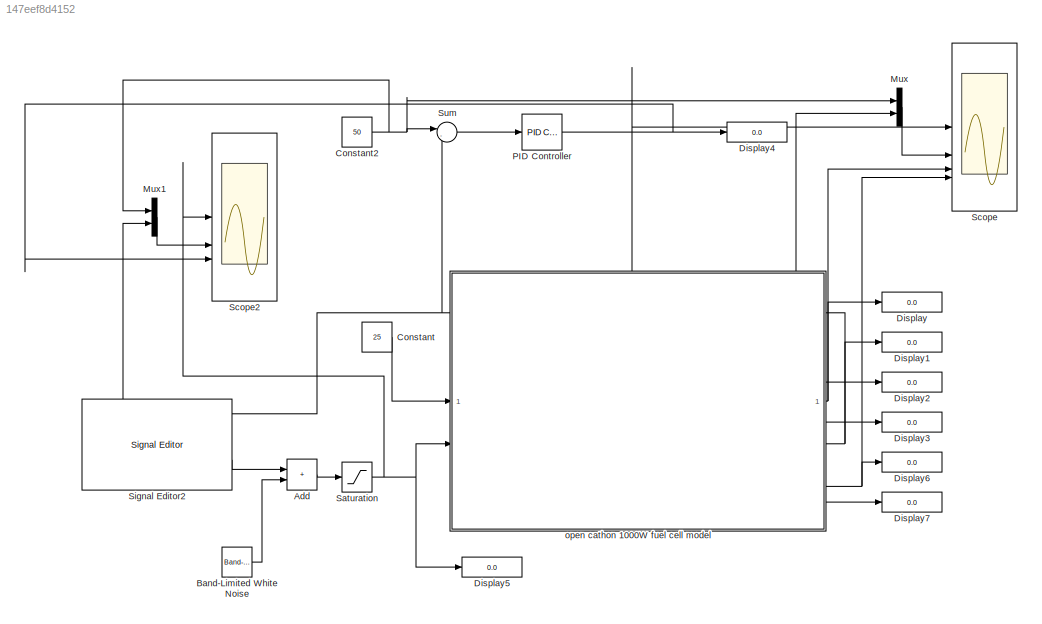
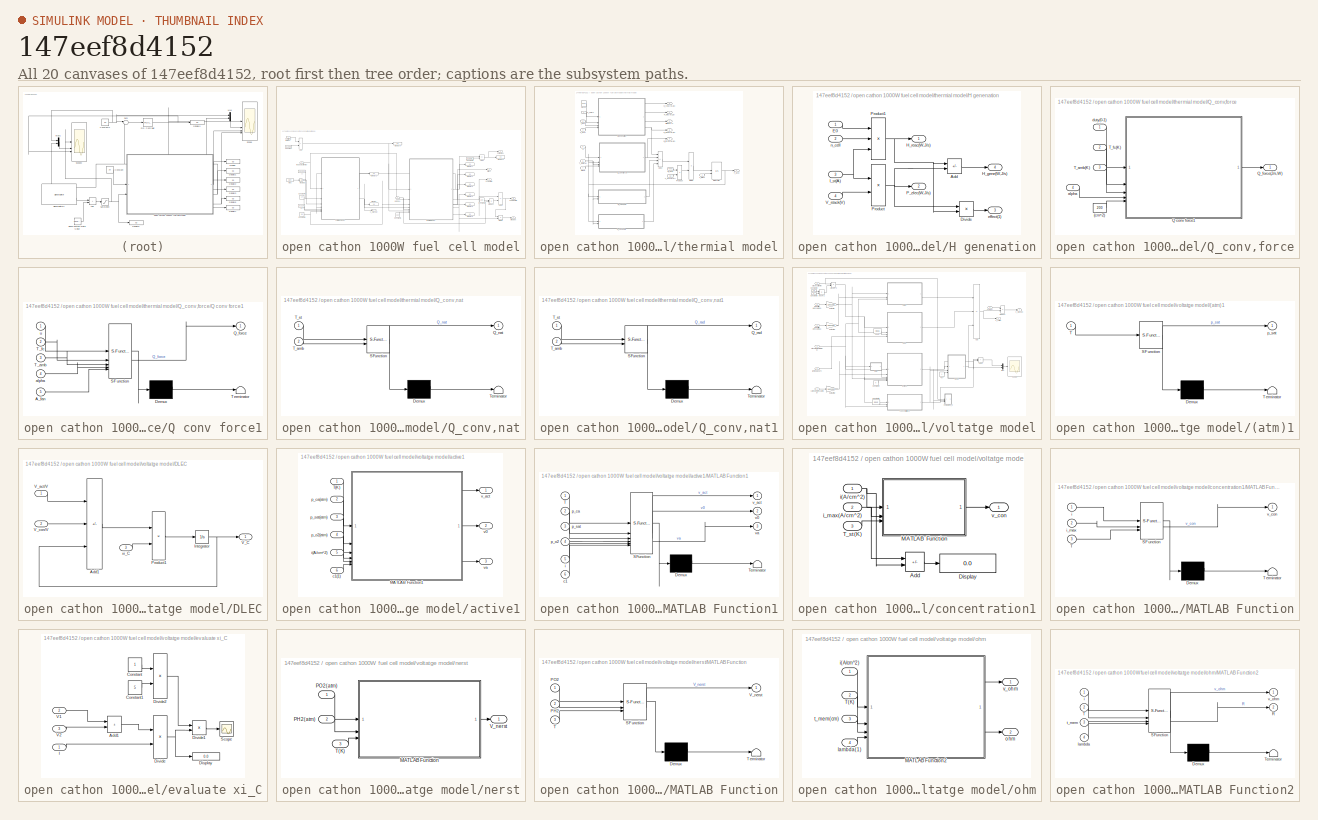
[diagram: thumbnail index - all 20 canvases of the model, root first then tree order]
MODEL slx_147eef8d4152
KIND model
CONFIG AbsTol = auto
CONFIG EnableMultiTasking = off
CONFIG FixedStep = auto
CONFIG MaxStep = auto
CONFIG MinStep = auto
CONFIG RelTol = 1e-3
CONFIG SampleTimeConstraint = Unconstrained
CONFIG SolverName = VariableStepAuto
CONFIG StartTime = 0.0
CONFIG StopTime = 200
BLOCK [Sum] Add
  IconShape = rectangular
BLOCK [Reference] Band-Limited White Noise  REF=simulink/Sources/Band-Limited
White Noise
  SourceBlock = simulink/Sources/Band-Limited\nWhite Noise
  SourceType = Band-Limited White Noise.
BLOCK [Constant] Constant
  Value = 25
BLOCK [Constant] Constant2
  Value = 50
BLOCK [Display] Display
  Decimation = 1
BLOCK [Display] Display1
  Decimation = 1
BLOCK [Display] Display2
  Decimation = 1
BLOCK [Display] Display3
  Decimation = 1
BLOCK [Display] Display4
  Decimation = 1
BLOCK [Display] Display5
  Decimation = 1
BLOCK [Display] Display6
  Decimation = 1
BLOCK [Display] Display7
  Decimation = 1
BLOCK [Mux] Mux
  DisplayOption = bar
  Inputs = 2
BLOCK [Mux] Mux1
  DisplayOption = bar
  Inputs = 2
BLOCK [Reference] PID Controller  REF=slpidlib/PID Controller
  LibrarySourceBlock = simulink/Continuous/PID Controller
  SourceBlock = slpidlib/PID Controller
  SourceType = PID 1dof
BLOCK [Saturate] Saturation
  LowerLimit = 0
  UpperLimit = 30
BLOCK [Scope] Scope
  Floating = off
  NumInputPorts = 4
  ScopeSpecificationString = Simulink.scopes.TimeScopeBlockCfg('CurrentConfiguration', extmgr.ConfigurationSet(extmgr.Configuration('Core','General UI',true),extmgr.Configuration('Core','Source UI',true),extmgr.Configuration('Sources','WiredSimulink',true),extmgr.Configuration('Visuals','Time Domain',true,'SerializedDisplays',{struct('MinYLimReal','-0.10748','MaxYLimReal','0.96734','YLabelReal','','MinYLimMag','0.00000','MaxY...<+3549ch>
BLOCK [Scope] Scope2
  Floating = off
  NumInputPorts = 3
  ScopeSpecificationString = Simulink.scopes.TimeScopeBlockCfg('CurrentConfiguration', extmgr.ConfigurationSet(extmgr.Configuration('Core','General UI',true,'FigureColor',[1 1 1]),extmgr.Configuration('Core','Source UI',true),extmgr.Configuration('Sources','WiredSimulink',true,'DataLoggingVariableName','ScopeData2'),extmgr.Configuration('Visuals','Time Domain',true,'SerializedDisplays',{struct('MinYLimReal','-3.75','MaxYLimRe...<+3335ch>
BLOCK [Reference] Signal Editor2  REF=SignalEditorBlockLib/Signal Editor
  LibrarySourceBlock = simulink/Sources/Signal Editor
  SourceBlock = SignalEditorBlockLib/Signal Editor
  SourceType = SignalEditor
  UserDataPersistent = on
BLOCK [Sum] Sum
  Inputs = |-+
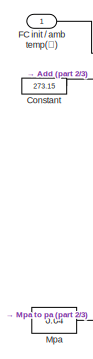
[diagram: open cathon 1000W fuel cell model - part 1/3, top left region]
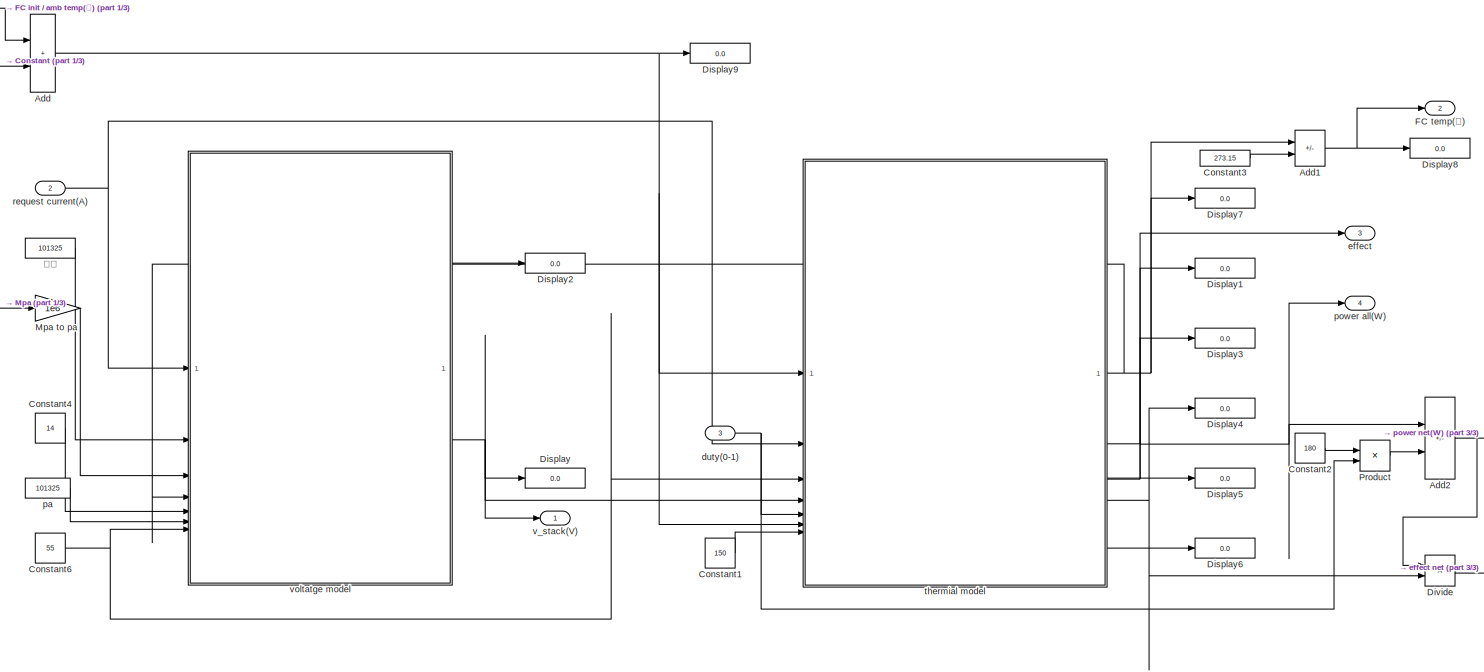
[diagram: open cathon 1000W fuel cell model - part 2/3, most of the canvas]
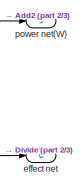
[diagram: open cathon 1000W fuel cell model - part 3/3, bottom right region]
BLOCK [SubSystem] open cathon 1000W fuel cell model
  PortSchema = {"entries":[{"content":{"sides":[{"content":{"connectorIds":["In1","In2"]},"type":"ConnectorPlacement.EquallySpacedRectSide","uuid":"ba3cf3bf-5a88-4595-bc65-1473d8f13f85"},{"content":{"connectorIds":["Out1","Out2","Out3","Out4","Out5","Out6"],"side":"RIGHT"},"type":"ConnectorPlacement.EquallySpacedRectSide","uuid":"62fe74ea-737d-441a-9df1-d302b55047a0"},{"content":{"connectorIds":["In3"],"side":"T...<+286ch>
BLOCK [Sum] open cathon 1000W fuel cell model/Add
  IconShape = rectangular
BLOCK [Sum] open cathon 1000W fuel cell model/Add1
  IconShape = rectangular
  Inputs = +-
BLOCK [Sum] open cathon 1000W fuel cell model/Add2
  IconShape = rectangular
  Inputs = +-
BLOCK [Constant] open cathon 1000W fuel cell model/Constant
  Value = 273.15
BLOCK [Constant] open cathon 1000W fuel cell model/Constant1
  Value = 150
BLOCK [Constant] open cathon 1000W fuel cell model/Constant2
  Value = 180
BLOCK [Constant] open cathon 1000W fuel cell model/Constant3
  Value = 273.15
BLOCK [Constant] open cathon 1000W fuel cell model/Constant4
  Value = 14
BLOCK [Constant] open cathon 1000W fuel cell model/Constant6
  Value = 55
BLOCK [Display] open cathon 1000W fuel cell model/Display
  Decimation = 1
BLOCK [Display] open cathon 1000W fuel cell model/Display1
  Decimation = 1
BLOCK [Display] open cathon 1000W fuel cell model/Display2
  Decimation = 1
BLOCK [Display] open cathon 1000W fuel cell model/Display3
  Decimation = 1
BLOCK [Display] open cathon 1000W fuel cell model/Display4
  Decimation = 1
BLOCK [Display] open cathon 1000W fuel cell model/Display5
  Decimation = 1
BLOCK [Display] open cathon 1000W fuel cell model/Display6
  Decimation = 1
BLOCK [Display] open cathon 1000W fuel cell model/Display7
  Decimation = 1
BLOCK [Display] open cathon 1000W fuel cell model/Display8
  Decimation = 1
BLOCK [Display] open cathon 1000W fuel cell model/Display9
  Decimation = 1
BLOCK [Product] open cathon 1000W fuel cell model/Divide
  Inputs = */
BLOCK [Inport] open cathon 1000W fuel cell model/FC init // amb temp(℃)
BLOCK [Outport] open cathon 1000W fuel cell model/FC temp(℃)
  Port = 2
BLOCK [Constant] open cathon 1000W fuel cell model/Mpa
  Value = 0.04
BLOCK [Gain] open cathon 1000W fuel cell model/Mpa to pa
  Gain = 1e6
BLOCK [Product] open cathon 1000W fuel cell model/Product
BLOCK [Inport] open cathon 1000W fuel cell model/duty(0-1)
  Port = 3
BLOCK [Outport] open cathon 1000W fuel cell model/effect
  Port = 3
BLOCK [Outport] open cathon 1000W fuel cell model/effect net
  Port = 6
BLOCK [Constant] open cathon 1000W fuel cell model/pa
  Value = 101325
BLOCK [Outport] open cathon 1000W fuel cell model/power all(W)
  Port = 4
BLOCK [Outport] open cathon 1000W fuel cell model/power net(W)
  Port = 5
BLOCK [Inport] open cathon 1000W fuel cell model/request current(A)
  Port = 2
BLOCK [SubSystem] open cathon 1000W fuel cell model/thermial model
BLOCK [Sum] open cathon 1000W fuel cell model/thermial model/Add1
  IconShape = rectangular
  Inputs = +---
BLOCK [Product] open cathon 1000W fuel cell model/thermial model/Divide
  Inputs = */
BLOCK [SubSystem] open cathon 1000W fuel cell model/thermial model/H genenation
BLOCK [Sum] open cathon 1000W fuel cell model/thermial model/H genenation/Add
  IconShape = rectangular
  Inputs = +-
BLOCK [Product] open cathon 1000W fuel cell model/thermial model/H genenation/Divide
  Inputs = */
BLOCK [Inport] open cathon 1000W fuel cell model/thermial model/H genenation/E0
BLOCK [Outport] open cathon 1000W fuel cell model/thermial model/H genenation/H_gene(W,J//s)
  Port = 4
BLOCK [Outport] open cathon 1000W fuel cell model/thermial model/H genenation/H_reac(W,J//s)
BLOCK [Inport] open cathon 1000W fuel cell model/thermial model/H genenation/I_st(A)
  Port = 3
BLOCK [Outport] open cathon 1000W fuel cell model/thermial model/H genenation/P_elec(W,J//s)
  Port = 2
BLOCK [Product] open cathon 1000W fuel cell model/thermial model/H genenation/Product
BLOCK [Product] open cathon 1000W fuel cell model/thermial model/H genenation/Product1
  Inputs = 3
BLOCK [Inport] open cathon 1000W fuel cell model/thermial model/H genenation/V_stack(V)
  Port = 4
BLOCK [Outport] open cathon 1000W fuel cell model/thermial model/H genenation/effect(1)
  Port = 3
BLOCK [Inport] open cathon 1000W fuel cell model/thermial model/H genenation/n_cell
  Port = 2
BLOCK [Outport] open cathon 1000W fuel cell model/thermial model/H_gene(W,J//s)
  Port = 5
BLOCK [Outport] open cathon 1000W fuel cell model/thermial model/H_reac(W,J//s)
  Port = 4
BLOCK [Inport] open cathon 1000W fuel cell model/thermial model/I_st(A)
  Port = 2
BLOCK [Integrator] open cathon 1000W fuel cell model/thermial model/Integrator
  InitialConditionSource = external
  LimitOutput = on
  LowerSaturationLimit = 273.15
  UpperSaturationLimit = 373.15
BLOCK [Outport] open cathon 1000W fuel cell model/thermial model/P_elec(W,J//s)
  Port = 3
BLOCK [Product] open cathon 1000W fuel cell model/thermial model/Product
BLOCK [SubSystem] open cathon 1000W fuel cell model/thermial model/Q_conv,force
BLOCK [Constant] open cathon 1000W fuel cell model/thermial model/Q_conv,force/(cm^2)
  Value = 200
BLOCK [SubSystem] open cathon 1000W fuel cell model/thermial model/Q_conv,force/Q conv force1
  ErrorFcn = Stateflow.Translate.translate
  LibrarySourceBlock = simulink/User-Defined\nFunctions/MATLAB Function
  PermitHierarchicalResolution = ExplicitOnly
  SFBlockType = MATLAB Function
  TreatAsAtomicUnit = on
BLOCK [Demux] open cathon 1000W fuel cell model/thermial model/Q_conv,force/Q conv force1/ Demux 
  Outputs = 1
BLOCK [S-Function] open cathon 1000W fuel cell model/thermial model/Q_conv,force/Q conv force1/ SFunction 
  EnableBusSupport = on
  FunctionName = sf_sfun
  PortCounts = [5 2]
  SFcnIsStateOwnerBlock = off
  SFunctionDeploymentMode = off
  Tag = Stateflow S-Function 8
BLOCK [Terminator] open cathon 1000W fuel cell model/thermial model/Q_conv,force/Q conv force1/ Terminator 
BLOCK [Inport] open cathon 1000W fuel cell model/thermial model/Q_conv,force/Q conv force1/A_fan
  Port = 5
BLOCK [Outport] open cathon 1000W fuel cell model/thermial model/Q_conv,force/Q conv force1/Q_force
BLOCK [Inport] open cathon 1000W fuel cell model/thermial model/Q_conv,force/Q conv force1/T_amb
  Port = 3
BLOCK [Inport] open cathon 1000W fuel cell model/thermial model/Q_conv,force/Q conv force1/T_fc
  Port = 2
BLOCK [Inport] open cathon 1000W fuel cell model/thermial model/Q_conv,force/Q conv force1/alpha
  Port = 4
BLOCK [Inport] open cathon 1000W fuel cell model/thermial model/Q_conv,force/Q conv force1/u
BLOCK [Outport] open cathon 1000W fuel cell model/thermial model/Q_conv,force/Q_force(J//s,W)
BLOCK [Inport] open cathon 1000W fuel cell model/thermial model/Q_conv,force/T_amb(K)
  Port = 3
BLOCK [Inport] open cathon 1000W fuel cell model/thermial model/Q_conv,force/T_fc(K)
  Port = 2
BLOCK [Inport] open cathon 1000W fuel cell model/thermial model/Q_conv,force/alpha
  Port = 4
BLOCK [Inport] open cathon 1000W fuel cell model/thermial model/Q_conv,force/duty(0-1)
BLOCK [SubSystem] open cathon 1000W fuel cell model/thermial model/Q_conv,nat
  ErrorFcn = Stateflow.Translate.translate
  LibrarySourceBlock = simulink/User-Defined\nFunctions/MATLAB Function
  PermitHierarchicalResolution = ExplicitOnly
  SFBlockType = MATLAB Function
  TreatAsAtomicUnit = on
BLOCK [Demux] open cathon 1000W fuel cell model/thermial model/Q_conv,nat/ Demux 
  Outputs = 1
BLOCK [S-Function] open cathon 1000W fuel cell model/thermial model/Q_conv,nat/ SFunction 
  EnableBusSupport = on
  FunctionName = sf_sfun
  PortCounts = [2 2]
  SFcnIsStateOwnerBlock = off
  SFunctionDeploymentMode = off
  Tag = Stateflow S-Function 7
BLOCK [Terminator] open cathon 1000W fuel cell model/thermial model/Q_conv,nat/ Terminator 
BLOCK [Outport] open cathon 1000W fuel cell model/thermial model/Q_conv,nat/Q_nat
BLOCK [Inport] open cathon 1000W fuel cell model/thermial model/Q_conv,nat/T_amb
  Port = 2
BLOCK [Inport] open cathon 1000W fuel cell model/thermial model/Q_conv,nat/T_st
BLOCK [SubSystem] open cathon 1000W fuel cell model/thermial model/Q_conv,nat1
  ErrorFcn = Stateflow.Translate.translate
  LibrarySourceBlock = simulink/User-Defined\nFunctions/MATLAB Function
  PermitHierarchicalResolution = ExplicitOnly
  SFBlockType = MATLAB Function
  TreatAsAtomicUnit = on
BLOCK [Demux] open cathon 1000W fuel cell model/thermial model/Q_conv,nat1/ Demux 
  Outputs = 1
BLOCK [S-Function] open cathon 1000W fuel cell model/thermial model/Q_conv,nat1/ SFunction 
  EnableBusSupport = on
  FunctionName = sf_sfun
  PortCounts = [2 2]
  SFcnIsStateOwnerBlock = off
  SFunctionDeploymentMode = off
  Tag = Stateflow S-Function 6
BLOCK [Terminator] open cathon 1000W fuel cell model/thermial model/Q_conv,nat1/ Terminator 
BLOCK [Outport] open cathon 1000W fuel cell model/thermial model/Q_conv,nat1/Q_rad
BLOCK [Inport] open cathon 1000W fuel cell model/thermial model/Q_conv,nat1/T_amb
  Port = 2
BLOCK [Inport] open cathon 1000W fuel cell model/thermial model/Q_conv,nat1/T_st
BLOCK [Outport] open cathon 1000W fuel cell model/thermial model/Q_force(W,J//s)
  Port = 6
BLOCK [Inport] open cathon 1000W fuel cell model/thermial model/T_amb(K)
  Port = 6
BLOCK [Inport] open cathon 1000W fuel cell model/thermial model/T_init(K)
BLOCK [Outport] open cathon 1000W fuel cell model/thermial model/T_st(K)
BLOCK [Inport] open cathon 1000W fuel cell model/thermial model/V_st(V)
  Port = 4
BLOCK [Inport] open cathon 1000W fuel cell model/thermial model/alpha
  Port = 7
BLOCK [Constant] open cathon 1000W fuel cell model/thermial model/c_st(J//(g*K))
  Value = 0.2
BLOCK [Outport] open cathon 1000W fuel cell model/thermial model/effect(0-1)
  Port = 2
BLOCK [Constant] open cathon 1000W fuel cell model/thermial model/m_st(g)
  Value = 4000
BLOCK [Inport] open cathon 1000W fuel cell model/thermial model/n_cell(1)
  Port = 3
BLOCK [Constant] open cathon 1000W fuel cell model/thermial model/nerst
  Value = 1.229
BLOCK [Inport] open cathon 1000W fuel cell model/thermial model/u
  Port = 5
BLOCK [Outport] open cathon 1000W fuel cell model/v_stack(V)
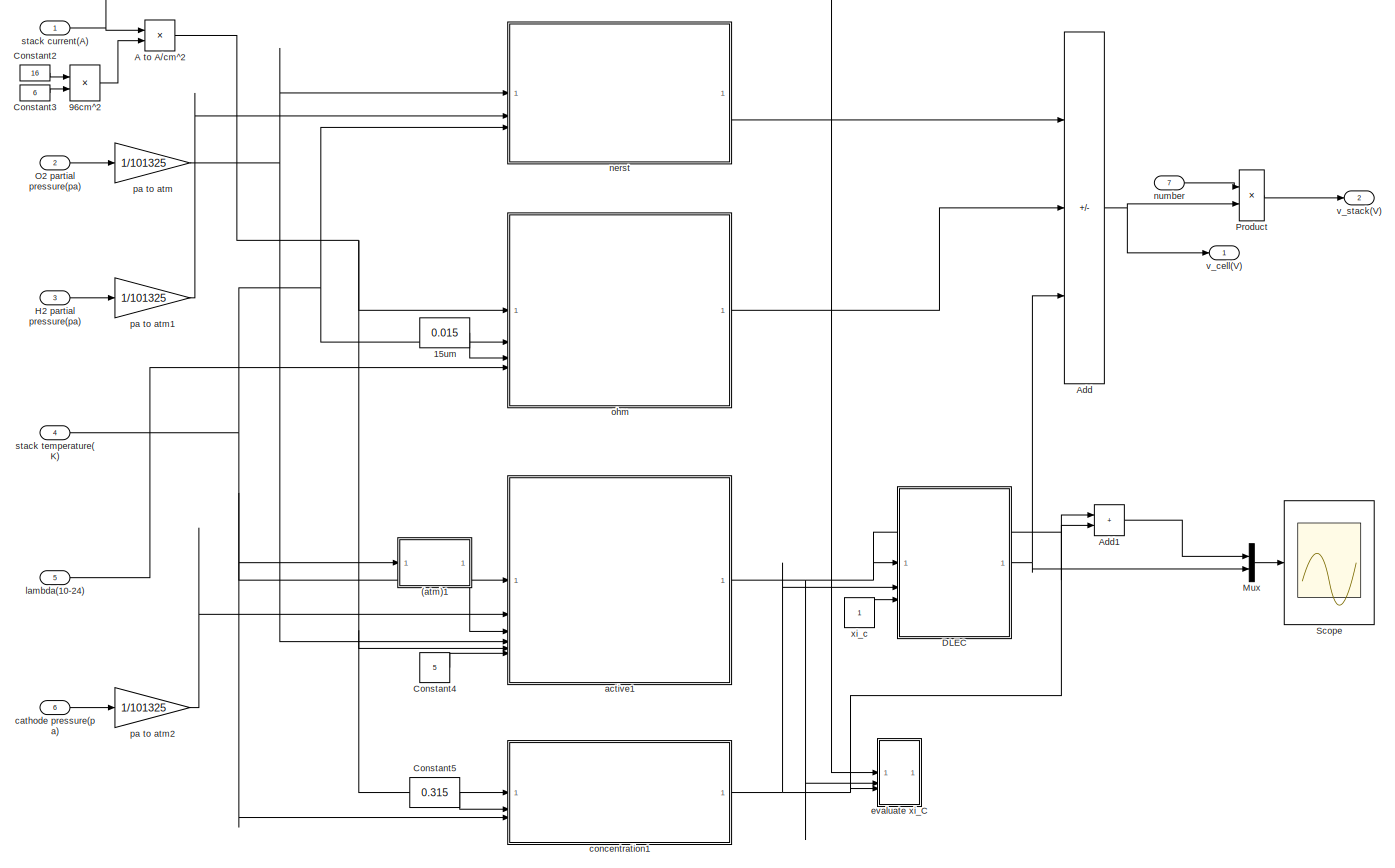
[diagram: open cathon 1000W fuel cell model/voltatge model - part 1/1, most of the canvas]
BLOCK [SubSystem] open cathon 1000W fuel cell model/voltatge model
BLOCK [SubSystem] open cathon 1000W fuel cell model/voltatge model/(atm)1
  ErrorFcn = Stateflow.Translate.translate
  PermitHierarchicalResolution = ExplicitOnly
  SFBlockType = MATLAB Function
  TreatAsAtomicUnit = on
BLOCK [Demux] open cathon 1000W fuel cell model/voltatge model/(atm)1/ Demux 
  Outputs = 1
BLOCK [S-Function] open cathon 1000W fuel cell model/voltatge model/(atm)1/ SFunction 
  EnableBusSupport = on
  FunctionName = sf_sfun
  PortCounts = [1 2]
  SFcnIsStateOwnerBlock = off
  SFunctionDeploymentMode = off
  Tag = Stateflow S-Function 19
BLOCK [Terminator] open cathon 1000W fuel cell model/voltatge model/(atm)1/ Terminator 
BLOCK [Inport] open cathon 1000W fuel cell model/voltatge model/(atm)1/T
BLOCK [Outport] open cathon 1000W fuel cell model/voltatge model/(atm)1/p_sat
BLOCK [Constant] open cathon 1000W fuel cell model/voltatge model/15um
  Value = 0.015
BLOCK [Product] open cathon 1000W fuel cell model/voltatge model/96cm^2
BLOCK [Product] open cathon 1000W fuel cell model/voltatge model/A to A//cm^2
  Inputs = */
BLOCK [Sum] open cathon 1000W fuel cell model/voltatge model/Add
  IconShape = rectangular
  Inputs = +--
BLOCK [Sum] open cathon 1000W fuel cell model/voltatge model/Add1
  IconShape = rectangular
BLOCK [Constant] open cathon 1000W fuel cell model/voltatge model/Constant2
  Value = 16
BLOCK [Constant] open cathon 1000W fuel cell model/voltatge model/Constant3
  Value = 6
BLOCK [Constant] open cathon 1000W fuel cell model/voltatge model/Constant4
  Value = 5
BLOCK [Constant] open cathon 1000W fuel cell model/voltatge model/Constant5
  Value = 0.315
BLOCK [SubSystem] open cathon 1000W fuel cell model/voltatge model/DLEC
BLOCK [Sum] open cathon 1000W fuel cell model/voltatge model/DLEC/Add1
  IconShape = rectangular
  Inputs = ++-
BLOCK [Integrator] open cathon 1000W fuel cell model/voltatge model/DLEC/Integrator
BLOCK [Product] open cathon 1000W fuel cell model/voltatge model/DLEC/Product1
BLOCK [Outport] open cathon 1000W fuel cell model/voltatge model/DLEC/V_C
BLOCK [Inport] open cathon 1000W fuel cell model/voltatge model/DLEC/V_act//V
BLOCK [Inport] open cathon 1000W fuel cell model/voltatge model/DLEC/V_con//V
  Port = 2
BLOCK [Inport] open cathon 1000W fuel cell model/voltatge model/DLEC/xi_C
  Port = 3
BLOCK [Inport] open cathon 1000W fuel cell model/voltatge model/H2 partial pressure(pa)
  Port = 3
BLOCK [Mux] open cathon 1000W fuel cell model/voltatge model/Mux
  DisplayOption = bar
  Inputs = 2
BLOCK [Inport] open cathon 1000W fuel cell model/voltatge model/O2 partial pressure(pa)
  Port = 2
BLOCK [Product] open cathon 1000W fuel cell model/voltatge model/Product
BLOCK [Scope] open cathon 1000W fuel cell model/voltatge model/Scope
  Floating = off
  NumInputPorts = 1
  ScopeSpecificationString = Simulink.scopes.TimeScopeBlockCfg('CurrentConfiguration', extmgr.ConfigurationSet(extmgr.Configuration('Core','General UI',true),extmgr.Configuration('Core','Source UI',true),extmgr.Configuration('Sources','WiredSimulink',true,'DataLoggingVariableName','ScopeData2'),extmgr.Configuration('Visuals','Time Domain',true,'SerializedDisplays',{struct('MinYLimReal','-0.06637','MaxYLimReal','0.59737','YLab...<+1451ch>
BLOCK [SubSystem] open cathon 1000W fuel cell model/voltatge model/active1
BLOCK [SubSystem] open cathon 1000W fuel cell model/voltatge model/active1/MATLAB Function1
  ErrorFcn = Stateflow.Translate.translate
  PermitHierarchicalResolution = ExplicitOnly
  SFBlockType = MATLAB Function
  TreatAsAtomicUnit = on
BLOCK [Demux] open cathon 1000W fuel cell model/voltatge model/active1/MATLAB Function1/ Demux 
  Outputs = 1
BLOCK [S-Function] open cathon 1000W fuel cell model/voltatge model/active1/MATLAB Function1/ SFunction 
  EnableBusSupport = on
  FunctionName = sf_sfun
  PortCounts = [6 4]
  SFcnIsStateOwnerBlock = off
  SFunctionDeploymentMode = off
  Tag = Stateflow S-Function 17
BLOCK [Terminator] open cathon 1000W fuel cell model/voltatge model/active1/MATLAB Function1/ Terminator 
BLOCK [Inport] open cathon 1000W fuel cell model/voltatge model/active1/MATLAB Function1/T
BLOCK [Inport] open cathon 1000W fuel cell model/voltatge model/active1/MATLAB Function1/c1
  Port = 6
BLOCK [Inport] open cathon 1000W fuel cell model/voltatge model/active1/MATLAB Function1/i
  Port = 5
BLOCK [Inport] open cathon 1000W fuel cell model/voltatge model/active1/MATLAB Function1/p_ca
  Port = 2
BLOCK [Inport] open cathon 1000W fuel cell model/voltatge model/active1/MATLAB Function1/p_o2
  Port = 4
BLOCK [Inport] open cathon 1000W fuel cell model/voltatge model/active1/MATLAB Function1/p_sat
  Port = 3
BLOCK [Outport] open cathon 1000W fuel cell model/voltatge model/active1/MATLAB Function1/v0
  Port = 2
BLOCK [Outport] open cathon 1000W fuel cell model/voltatge model/active1/MATLAB Function1/v_act
BLOCK [Outport] open cathon 1000W fuel cell model/voltatge model/active1/MATLAB Function1/va
  Port = 3
BLOCK [Inport] open cathon 1000W fuel cell model/voltatge model/active1/T(K)
BLOCK [Inport] open cathon 1000W fuel cell model/voltatge model/active1/c1(1)
  Port = 6
BLOCK [Inport] open cathon 1000W fuel cell model/voltatge model/active1/i(A//cm^2)
  Port = 5
BLOCK [Inport] open cathon 1000W fuel cell model/voltatge model/active1/p_ca(atm)
  Port = 2
BLOCK [Inport] open cathon 1000W fuel cell model/voltatge model/active1/p_o2(atm)
  Port = 4
BLOCK [Inport] open cathon 1000W fuel cell model/voltatge model/active1/p_sat(atm)
  Port = 3
BLOCK [Outport] open cathon 1000W fuel cell model/voltatge model/active1/v0
  Port = 2
BLOCK [Outport] open cathon 1000W fuel cell model/voltatge model/active1/v_act
BLOCK [Outport] open cathon 1000W fuel cell model/voltatge model/active1/va
  Port = 3
BLOCK [Inport] open cathon 1000W fuel cell model/voltatge model/cathode pressure(pa)
  Port = 6
BLOCK [SubSystem] open cathon 1000W fuel cell model/voltatge model/concentration1
BLOCK [Sum] open cathon 1000W fuel cell model/voltatge model/concentration1/Add
  IconShape = rectangular
  Inputs = +-
BLOCK [Display] open cathon 1000W fuel cell model/voltatge model/concentration1/Display
  Decimation = 1
BLOCK [SubSystem] open cathon 1000W fuel cell model/voltatge model/concentration1/MATLAB Function
  ErrorFcn = Stateflow.Translate.translate
  PermitHierarchicalResolution = ExplicitOnly
  SFBlockType = MATLAB Function
  TreatAsAtomicUnit = on
BLOCK [Demux] open cathon 1000W fuel cell model/voltatge model/concentration1/MATLAB Function/ Demux 
  Outputs = 1
BLOCK [S-Function] open cathon 1000W fuel cell model/voltatge model/concentration1/MATLAB Function/ SFunction 
  EnableBusSupport = on
  FunctionName = sf_sfun
  PortCounts = [3 2]
  SFcnIsStateOwnerBlock = off
  SFunctionDeploymentMode = off
  Tag = Stateflow S-Function 18
BLOCK [Terminator] open cathon 1000W fuel cell model/voltatge model/concentration1/MATLAB Function/ Terminator 
BLOCK [Inport] open cathon 1000W fuel cell model/voltatge model/concentration1/MATLAB Function/T
  Port = 3
BLOCK [Inport] open cathon 1000W fuel cell model/voltatge model/concentration1/MATLAB Function/i
BLOCK [Inport] open cathon 1000W fuel cell model/voltatge model/concentration1/MATLAB Function/i_max
  Port = 2
BLOCK [Outport] open cathon 1000W fuel cell model/voltatge model/concentration1/MATLAB Function/v_con
BLOCK [Inport] open cathon 1000W fuel cell model/voltatge model/concentration1/T_st(K)
  Port = 3
BLOCK [Inport] open cathon 1000W fuel cell model/voltatge model/concentration1/i(A//cm^2)
BLOCK [Inport] open cathon 1000W fuel cell model/voltatge model/concentration1/i_max(A//cm^2)
  Port = 2
BLOCK [Outport] open cathon 1000W fuel cell model/voltatge model/concentration1/v_con
BLOCK [SubSystem] open cathon 1000W fuel cell model/voltatge model/evaluate xi_C
BLOCK [Sum] open cathon 1000W fuel cell model/voltatge model/evaluate xi_C/Add1
  IconShape = rectangular
BLOCK [Constant] open cathon 1000W fuel cell model/voltatge model/evaluate xi_C/Constant
BLOCK [Constant] open cathon 1000W fuel cell model/voltatge model/evaluate xi_C/Constant1
  Value = 5
BLOCK [Display] open cathon 1000W fuel cell model/voltatge model/evaluate xi_C/Display
  Decimation = 1
BLOCK [Product] open cathon 1000W fuel cell model/voltatge model/evaluate xi_C/Divide
  Inputs = */
BLOCK [Product] open cathon 1000W fuel cell model/voltatge model/evaluate xi_C/Divide1
  Inputs = */
BLOCK [Product] open cathon 1000W fuel cell model/voltatge model/evaluate xi_C/Divide2
  Inputs = */
BLOCK [Inport] open cathon 1000W fuel cell model/voltatge model/evaluate xi_C/I
BLOCK [Scope] open cathon 1000W fuel cell model/voltatge model/evaluate xi_C/Scope
  Floating = off
  NumInputPorts = 1
  ScopeSpecificationString = Simulink.scopes.TimeScopeBlockCfg('CurrentConfiguration', extmgr.ConfigurationSet(extmgr.Configuration('Core','General UI',true),extmgr.Configuration('Core','Source UI',true),extmgr.Configuration('Sources','WiredSimulink',true,'DataLoggingVariableName','ScopeData1'),extmgr.Configuration('Visuals','Time Domain',true,'SerializedDisplays',{struct('MinYLimReal','-1.46174','MaxYLimReal','13.15566','YLa...<+1370ch>
BLOCK [Inport] open cathon 1000W fuel cell model/voltatge model/evaluate xi_C/V1
  Port = 2
BLOCK [Inport] open cathon 1000W fuel cell model/voltatge model/evaluate xi_C/V2
  Port = 3
BLOCK [Inport] open cathon 1000W fuel cell model/voltatge model/lambda(10-24)
  Port = 5
BLOCK [SubSystem] open cathon 1000W fuel cell model/voltatge model/nerst
BLOCK [SubSystem] open cathon 1000W fuel cell model/voltatge model/nerst/MATLAB Function
  ErrorFcn = Stateflow.Translate.translate
  PermitHierarchicalResolution = ExplicitOnly
  SFBlockType = MATLAB Function
  ShowPortLabels = SignalName
  TreatAsAtomicUnit = on
BLOCK [Demux] open cathon 1000W fuel cell model/voltatge model/nerst/MATLAB Function/ Demux 
  Outputs = 1
BLOCK [S-Function] open cathon 1000W fuel cell model/voltatge model/nerst/MATLAB Function/ SFunction 
  EnableBusSupport = on
  FunctionName = sf_sfun
  PortCounts = [3 2]
  SFcnIsStateOwnerBlock = off
  SFunctionDeploymentMode = off
  Tag = Stateflow S-Function 2
BLOCK [Terminator] open cathon 1000W fuel cell model/voltatge model/nerst/MATLAB Function/ Terminator 
BLOCK [Inport] open cathon 1000W fuel cell model/voltatge model/nerst/MATLAB Function/PH2
  Port = 2
BLOCK [Inport] open cathon 1000W fuel cell model/voltatge model/nerst/MATLAB Function/PO2
BLOCK [Inport] open cathon 1000W fuel cell model/voltatge model/nerst/MATLAB Function/T
  Port = 3
BLOCK [Outport] open cathon 1000W fuel cell model/voltatge model/nerst/MATLAB Function/V_nerst
BLOCK [Inport] open cathon 1000W fuel cell model/voltatge model/nerst/PH2(atm)
  Port = 2
BLOCK [Inport] open cathon 1000W fuel cell model/voltatge model/nerst/PO2(atm)
BLOCK [Inport] open cathon 1000W fuel cell model/voltatge model/nerst/T(K)
  Port = 3
BLOCK [Outport] open cathon 1000W fuel cell model/voltatge model/nerst/V_nerst
BLOCK [Inport] open cathon 1000W fuel cell model/voltatge model/number
  Port = 7
BLOCK [SubSystem] open cathon 1000W fuel cell model/voltatge model/ohm
BLOCK [SubSystem] open cathon 1000W fuel cell model/voltatge model/ohm/MATLAB Function2
  ErrorFcn = Stateflow.Translate.translate
  PermitHierarchicalResolution = ExplicitOnly
  SFBlockType = MATLAB Function
  ShowPortLabels = FromPortBlockName
  TreatAsAtomicUnit = on
BLOCK [Demux] open cathon 1000W fuel cell model/voltatge model/ohm/MATLAB Function2/ Demux 
  Outputs = 1
BLOCK [S-Function] open cathon 1000W fuel cell model/voltatge model/ohm/MATLAB Function2/ SFunction 
  EnableBusSupport = on
  FunctionName = sf_sfun
  PortCounts = [4 3]
  SFcnIsStateOwnerBlock = off
  SFunctionDeploymentMode = off
  Tag = Stateflow S-Function 4
BLOCK [Terminator] open cathon 1000W fuel cell model/voltatge model/ohm/MATLAB Function2/ Terminator 
BLOCK [Outport] open cathon 1000W fuel cell model/voltatge model/ohm/MATLAB Function2/R
  Port = 2
BLOCK [Inport] open cathon 1000W fuel cell model/voltatge model/ohm/MATLAB Function2/T
  Port = 2
BLOCK [Inport] open cathon 1000W fuel cell model/voltatge model/ohm/MATLAB Function2/i
BLOCK [Inport] open cathon 1000W fuel cell model/voltatge model/ohm/MATLAB Function2/lambda
  Port = 4
BLOCK [Inport] open cathon 1000W fuel cell model/voltatge model/ohm/MATLAB Function2/t_mem
  Port = 3
BLOCK [Outport] open cathon 1000W fuel cell model/voltatge model/ohm/MATLAB Function2/v_ohm
BLOCK [Inport] open cathon 1000W fuel cell model/voltatge model/ohm/T(K)
  Port = 2
BLOCK [Inport] open cathon 1000W fuel cell model/voltatge model/ohm/i(A//cm^2)
BLOCK [Inport] open cathon 1000W fuel cell model/voltatge model/ohm/lambda(1)
  Port = 4
BLOCK [Outport] open cathon 1000W fuel cell model/voltatge model/ohm/ohm
  Port = 2
BLOCK [Inport] open cathon 1000W fuel cell model/voltatge model/ohm/t_mem(cm)
  Port = 3
BLOCK [Outport] open cathon 1000W fuel cell model/voltatge model/ohm/v_ohm
BLOCK [Gain] open cathon 1000W fuel cell model/voltatge model/pa to atm
  Gain = 1/101325
BLOCK [Gain] open cathon 1000W fuel cell model/voltatge model/pa to atm1
  Gain = 1/101325
BLOCK [Gain] open cathon 1000W fuel cell model/voltatge model/pa to atm2
  Gain = 1/101325
BLOCK [Inport] open cathon 1000W fuel cell model/voltatge model/stack current(A)
BLOCK [Inport] open cathon 1000W fuel cell model/voltatge model/stack temperature(K)
  Port = 4
BLOCK [Outport] open cathon 1000W fuel cell model/voltatge model/v_cell(V)
BLOCK [Outport] open cathon 1000W fuel cell model/voltatge model/v_stack(V)
  Port = 2
BLOCK [Constant] open cathon 1000W fuel cell model/voltatge model/xi_c
BLOCK [Constant] open cathon 1000W fuel cell model/常压
  Value = 101325
LINE Add:1 -> Saturation:1
LINE Band-Limited White Noise:1 -> Add:2
NET Constant2:1 -> Mux1:1, Mux:1, Sum:1
LINE Constant:1 -> open cathon 1000W fuel cell model:1
LINE Mux1:1 -> Scope2:2
LINE Mux:1 -> Scope:2
NET PID Controller:1 -> Display4:1, Scope2:3, Scope:1, open cathon 1000W fuel cell model:3
NET Saturation:1 -> Display5:1, Scope2:1, open cathon 1000W fuel cell model:2
LINE Signal Editor2:2 -> Add:1
LINE Sum:1 -> PID Controller:1
NET open cathon 1000W fuel cell model/Add1:1 -> open cathon 1000W fuel cell model/Display8:1, open cathon 1000W fuel cell model/FC temp(℃):1
NET open cathon 1000W fuel cell model/Add2:1 -> open cathon 1000W fuel cell model/Divide:1, open cathon 1000W fuel cell model/power net(W):1
NET open cathon 1000W fuel cell model/Add:1 -> open cathon 1000W fuel cell model/Display9:1, open cathon 1000W fuel cell model/thermial model:1, open cathon 1000W fuel cell model/thermial model:6
LINE open cathon 1000W fuel cell model/Constant1:1 -> open cathon 1000W fuel cell model/thermial model:7
LINE open cathon 1000W fuel cell model/Constant2:1 -> open cathon 1000W fuel cell model/Product:1
LINE open cathon 1000W fuel cell model/Constant3:1 -> open cathon 1000W fuel cell model/Add1:2
LINE open cathon 1000W fuel cell model/Constant4:1 -> open cathon 1000W fuel cell model/voltatge model:5
NET open cathon 1000W fuel cell model/Constant6:1 -> open cathon 1000W fuel cell model/thermial model:3, open cathon 1000W fuel cell model/voltatge model:7
LINE open cathon 1000W fuel cell model/Constant:1 -> open cathon 1000W fuel cell model/Add:2
LINE open cathon 1000W fuel cell model/Divide:1 -> open cathon 1000W fuel cell model/effect net:1
LINE open cathon 1000W fuel cell model/FC init // amb temp(℃):1 -> open cathon 1000W fuel cell model/Add:1
LINE open cathon 1000W fuel cell model/Mpa to pa:1 -> open cathon 1000W fuel cell model/voltatge model:3
LINE open cathon 1000W fuel cell model/Mpa:1 -> open cathon 1000W fuel cell model/Mpa to pa:1
LINE open cathon 1000W fuel cell model/Product:1 -> open cathon 1000W fuel cell model/Add2:2
NET open cathon 1000W fuel cell model/duty(0-1):1 -> open cathon 1000W fuel cell model/Product:2, open cathon 1000W fuel cell model/thermial model:5
LINE open cathon 1000W fuel cell model/pa:1 -> open cathon 1000W fuel cell model/voltatge model:6
NET open cathon 1000W fuel cell model/request current(A):1 -> open cathon 1000W fuel cell model/thermial model:2, open cathon 1000W fuel cell model/voltatge model:1
LINE open cathon 1000W fuel cell model/thermial model/Add1:1 -> open cathon 1000W fuel cell model/thermial model/Divide:1
LINE open cathon 1000W fuel cell model/thermial model/Divide:1 -> open cathon 1000W fuel cell model/thermial model/Integrator:1
LINE open cathon 1000W fuel cell model/thermial model/H genenation/Add:1 -> open cathon 1000W fuel cell model/thermial model/H genenation/H_gene(W,J//s):1
LINE open cathon 1000W fuel cell model/thermial model/H genenation/Divide:1 -> open cathon 1000W fuel cell model/thermial model/H genenation/effect(1):1
LINE open cathon 1000W fuel cell model/thermial model/H genenation/E0:1 -> open cathon 1000W fuel cell model/thermial model/H genenation/Product1:1
NET open cathon 1000W fuel cell model/thermial model/H genenation/I_st(A):1 -> open cathon 1000W fuel cell model/thermial model/H genenation/Product1:3, open cathon 1000W fuel cell model/thermial model/H genenation/Product:1
NET open cathon 1000W fuel cell model/thermial model/H genenation/Product1:1 -> open cathon 1000W fuel cell model/thermial model/H genenation/Add:1, open cathon 1000W fuel cell model/thermial model/H genenation/Divide:2, open cathon 1000W fuel cell model/thermial model/H genenation/H_reac(W,J//s):1
NET open cathon 1000W fuel cell model/thermial model/H genenation/Product:1 -> open cathon 1000W fuel cell model/thermial model/H genenation/Add:2, open cathon 1000W fuel cell model/thermial model/H genenation/Divide:1, open cathon 1000W fuel cell model/thermial model/H genenation/P_elec(W,J//s):1
LINE open cathon 1000W fuel cell model/thermial model/H genenation/V_stack(V):1 -> open cathon 1000W fuel cell model/thermial model/H genenation/Product:2
LINE open cathon 1000W fuel cell model/thermial model/H genenation/n_cell:1 -> open cathon 1000W fuel cell model/thermial model/H genenation/Product1:2
LINE open cathon 1000W fuel cell model/thermial model/H genenation:1 -> open cathon 1000W fuel cell model/thermial model/H_reac(W,J//s):1
LINE open cathon 1000W fuel cell model/thermial model/H genenation:2 -> open cathon 1000W fuel cell model/thermial model/P_elec(W,J//s):1
LINE open cathon 1000W fuel cell model/thermial model/H genenation:3 -> open cathon 1000W fuel cell model/thermial model/effect(0-1):1
NET open cathon 1000W fuel cell model/thermial model/H genenation:4 -> open cathon 1000W fuel cell model/thermial model/Add1:1, open cathon 1000W fuel cell model/thermial model/H_gene(W,J//s):1
LINE open cathon 1000W fuel cell model/thermial model/I_st(A):1 -> open cathon 1000W fuel cell model/thermial model/H genenation:3
NET open cathon 1000W fuel cell model/thermial model/Integrator:1 -> open cathon 1000W fuel cell model/thermial model/Q_conv,force:2, open cathon 1000W fuel cell model/thermial model/Q_conv,nat1:1, open cathon 1000W fuel cell model/thermial model/Q_conv,nat:1, open cathon 1000W fuel cell model/thermial model/T_st(K):1
LINE open cathon 1000W fuel cell model/thermial model/Product:1 -> open cathon 1000W fuel cell model/thermial model/Divide:2
LINE open cathon 1000W fuel cell model/thermial model/Q_conv,force/(cm^2):1 -> open cathon 1000W fuel cell model/thermial model/Q_conv,force/Q conv force1:5
LINE open cathon 1000W fuel cell model/thermial model/Q_conv,force/Q conv force1:1 -> open cathon 1000W fuel cell model/thermial model/Q_conv,force/Q_force(J//s,W):1
LINE open cathon 1000W fuel cell model/thermial model/Q_conv,force/T_amb(K):1 -> open cathon 1000W fuel cell model/thermial model/Q_conv,force/Q conv force1:3
LINE open cathon 1000W fuel cell model/thermial model/Q_conv,force/T_fc(K):1 -> open cathon 1000W fuel cell model/thermial model/Q_conv,force/Q conv force1:2
LINE open cathon 1000W fuel cell model/thermial model/Q_conv,force/alpha:1 -> open cathon 1000W fuel cell model/thermial model/Q_conv,force/Q conv force1:4
LINE open cathon 1000W fuel cell model/thermial model/Q_conv,force/duty(0-1):1 -> open cathon 1000W fuel cell model/thermial model/Q_conv,force/Q conv force1:1
NET open cathon 1000W fuel cell model/thermial model/Q_conv,force:1 -> open cathon 1000W fuel cell model/thermial model/Add1:2, open cathon 1000W fuel cell model/thermial model/Q_force(W,J//s):1
LINE open cathon 1000W fuel cell model/thermial model/Q_conv,nat1:1 -> open cathon 1000W fuel cell model/thermial model/Add1:4
LINE open cathon 1000W fuel cell model/thermial model/Q_conv,nat:1 -> open cathon 1000W fuel cell model/thermial model/Add1:3
NET open cathon 1000W fuel cell model/thermial model/T_amb(K):1 -> open cathon 1000W fuel cell model/thermial model/Q_conv,force:3, open cathon 1000W fuel cell model/thermial model/Q_conv,nat1:2, open cathon 1000W fuel cell model/thermial model/Q_conv,nat:2
LINE open cathon 1000W fuel cell model/thermial model/T_init(K):1 -> open cathon 1000W fuel cell model/thermial model/Integrator:2
LINE open cathon 1000W fuel cell model/thermial model/V_st(V):1 -> open cathon 1000W fuel cell model/thermial model/H genenation:4
LINE open cathon 1000W fuel cell model/thermial model/alpha:1 -> open cathon 1000W fuel cell model/thermial model/Q_conv,force:4
LINE open cathon 1000W fuel cell model/thermial model/c_st(J//(g*K)):1 -> open cathon 1000W fuel cell model/thermial model/Product:2
LINE open cathon 1000W fuel cell model/thermial model/m_st(g):1 -> open cathon 1000W fuel cell model/thermial model/Product:1
LINE open cathon 1000W fuel cell model/thermial model/n_cell(1):1 -> open cathon 1000W fuel cell model/thermial model/H genenation:2
LINE open cathon 1000W fuel cell model/thermial model/nerst:1 -> open cathon 1000W fuel cell model/thermial model/H genenation:1
LINE open cathon 1000W fuel cell model/thermial model/u:1 -> open cathon 1000W fuel cell model/thermial model/Q_conv,force:1
NET open cathon 1000W fuel cell model/thermial model:1 -> open cathon 1000W fuel cell model/Add1:1, open cathon 1000W fuel cell model/Display7:1, open cathon 1000W fuel cell model/voltatge model:4
NET open cathon 1000W fuel cell model/thermial model:2 -> open cathon 1000W fuel cell model/Display1:1, open cathon 1000W fuel cell model/effect:1
NET open cathon 1000W fuel cell model/thermial model:3 -> open cathon 1000W fuel cell model/Add2:1, open cathon 1000W fuel cell model/Display3:1, open cathon 1000W fuel cell model/power all(W):1
NET open cathon 1000W fuel cell model/thermial model:4 -> open cathon 1000W fuel cell model/Display4:1, open cathon 1000W fuel cell model/Divide:2
LINE open cathon 1000W fuel cell model/thermial model:5 -> open cathon 1000W fuel cell model/Display5:1
LINE open cathon 1000W fuel cell model/thermial model:6 -> open cathon 1000W fuel cell model/Display6:1
LINE open cathon 1000W fuel cell model/voltatge model/(atm)1:1 -> open cathon 1000W fuel cell model/voltatge model/active1:3
LINE open cathon 1000W fuel cell model/voltatge model/15um:1 -> open cathon 1000W fuel cell model/voltatge model/ohm:3
LINE open cathon 1000W fuel cell model/voltatge model/96cm^2:1 -> open cathon 1000W fuel cell model/voltatge model/A to A//cm^2:2
NET open cathon 1000W fuel cell model/voltatge model/A to A//cm^2:1 -> open cathon 1000W fuel cell model/voltatge model/active1:5, open cathon 1000W fuel cell model/voltatge model/concentration1:1, open cathon 1000W fuel cell model/voltatge model/ohm:1
LINE open cathon 1000W fuel cell model/voltatge model/Add1:1 -> open cathon 1000W fuel cell model/voltatge model/Mux:1
NET open cathon 1000W fuel cell model/voltatge model/Add:1 -> open cathon 1000W fuel cell model/voltatge model/Product:2, open cathon 1000W fuel cell model/voltatge model/v_cell(V):1
LINE open cathon 1000W fuel cell model/voltatge model/Constant2:1 -> open cathon 1000W fuel cell model/voltatge model/96cm^2:1
LINE open cathon 1000W fuel cell model/voltatge model/Constant3:1 -> open cathon 1000W fuel cell model/voltatge model/96cm^2:2
LINE open cathon 1000W fuel cell model/voltatge model/Constant4:1 -> open cathon 1000W fuel cell model/voltatge model/active1:6
LINE open cathon 1000W fuel cell model/voltatge model/Constant5:1 -> open cathon 1000W fuel cell model/voltatge model/concentration1:2
LINE open cathon 1000W fuel cell model/voltatge model/DLEC/Add1:1 -> open cathon 1000W fuel cell model/voltatge model/DLEC/Product1:1
NET open cathon 1000W fuel cell model/voltatge model/DLEC/Integrator:1 -> open cathon 1000W fuel cell model/voltatge model/DLEC/Add1:3, open cathon 1000W fuel cell model/voltatge model/DLEC/V_C:1
LINE open cathon 1000W fuel cell model/voltatge model/DLEC/Product1:1 -> open cathon 1000W fuel cell model/voltatge model/DLEC/Integrator:1
LINE open cathon 1000W fuel cell model/voltatge model/DLEC/V_act//V:1 -> open cathon 1000W fuel cell model/voltatge model/DLEC/Add1:1
LINE open cathon 1000W fuel cell model/voltatge model/DLEC/V_con//V:1 -> open cathon 1000W fuel cell model/voltatge model/DLEC/Add1:2
LINE open cathon 1000W fuel cell model/voltatge model/DLEC/xi_C:1 -> open cathon 1000W fuel cell model/voltatge model/DLEC/Product1:2
NET open cathon 1000W fuel cell model/voltatge model/DLEC:1 -> open cathon 1000W fuel cell model/voltatge model/Add:3, open cathon 1000W fuel cell model/voltatge model/Mux:2
LINE open cathon 1000W fuel cell model/voltatge model/H2 partial pressure(pa):1 -> open cathon 1000W fuel cell model/voltatge model/pa to atm1:1
LINE open cathon 1000W fuel cell model/voltatge model/Mux:1 -> open cathon 1000W fuel cell model/voltatge model/Scope:1
LINE open cathon 1000W fuel cell model/voltatge model/O2 partial pressure(pa):1 -> open cathon 1000W fuel cell model/voltatge model/pa to atm:1
LINE open cathon 1000W fuel cell model/voltatge model/Product:1 -> open cathon 1000W fuel cell model/voltatge model/v_stack(V):1
LINE open cathon 1000W fuel cell model/voltatge model/active1/MATLAB Function1:1 -> open cathon 1000W fuel cell model/voltatge model/active1/v_act:1
LINE open cathon 1000W fuel cell model/voltatge model/active1/MATLAB Function1:2 -> open cathon 1000W fuel cell model/voltatge model/active1/v0:1
LINE open cathon 1000W fuel cell model/voltatge model/active1/MATLAB Function1:3 -> open cathon 1000W fuel cell model/voltatge model/active1/va:1
LINE open cathon 1000W fuel cell model/voltatge model/active1/T(K):1 -> open cathon 1000W fuel cell model/voltatge model/active1/MATLAB Function1:1
LINE open cathon 1000W fuel cell model/voltatge model/active1/c1(1):1 -> open cathon 1000W fuel cell model/voltatge model/active1/MATLAB Function1:6
LINE open cathon 1000W fuel cell model/voltatge model/active1/i(A//cm^2):1 -> open cathon 1000W fuel cell model/voltatge model/active1/MATLAB Function1:5
LINE open cathon 1000W fuel cell model/voltatge model/active1/p_ca(atm):1 -> open cathon 1000W fuel cell model/voltatge model/active1/MATLAB Function1:2
LINE open cathon 1000W fuel cell model/voltatge model/active1/p_o2(atm):1 -> open cathon 1000W fuel cell model/voltatge model/active1/MATLAB Function1:4
LINE open cathon 1000W fuel cell model/voltatge model/active1/p_sat(atm):1 -> open cathon 1000W fuel cell model/voltatge model/active1/MATLAB Function1:3
NET open cathon 1000W fuel cell model/voltatge model/active1:1 -> open cathon 1000W fuel cell model/voltatge model/Add1:1, open cathon 1000W fuel cell model/voltatge model/DLEC:1, open cathon 1000W fuel cell model/voltatge model/evaluate xi_C:2
LINE open cathon 1000W fuel cell model/voltatge model/cathode pressure(pa):1 -> open cathon 1000W fuel cell model/voltatge model/pa to atm2:1
LINE open cathon 1000W fuel cell model/voltatge model/concentration1/Add:1 -> open cathon 1000W fuel cell model/voltatge model/concentration1/Display:1
LINE open cathon 1000W fuel cell model/voltatge model/concentration1/MATLAB Function:1 -> open cathon 1000W fuel cell model/voltatge model/concentration1/v_con:1
LINE open cathon 1000W fuel cell model/voltatge model/concentration1/T_st(K):1 -> open cathon 1000W fuel cell model/voltatge model/concentration1/MATLAB Function:3
NET open cathon 1000W fuel cell model/voltatge model/concentration1/i(A//cm^2):1 -> open cathon 1000W fuel cell model/voltatge model/concentration1/Add:2, open cathon 1000W fuel cell model/voltatge model/concentration1/MATLAB Function:1
NET open cathon 1000W fuel cell model/voltatge model/concentration1/i_max(A//cm^2):1 -> open cathon 1000W fuel cell model/voltatge model/concentration1/Add:1, open cathon 1000W fuel cell model/voltatge model/concentration1/MATLAB Function:2
NET open cathon 1000W fuel cell model/voltatge model/concentration1:1 -> open cathon 1000W fuel cell model/voltatge model/Add1:2, open cathon 1000W fuel cell model/voltatge model/DLEC:2, open cathon 1000W fuel cell model/voltatge model/evaluate xi_C:3
LINE open cathon 1000W fuel cell model/voltatge model/evaluate xi_C/Add1:1 -> open cathon 1000W fuel cell model/voltatge model/evaluate xi_C/Divide:1
LINE open cathon 1000W fuel cell model/voltatge model/evaluate xi_C/Constant1:1 -> open cathon 1000W fuel cell model/voltatge model/evaluate xi_C/Divide2:2
LINE open cathon 1000W fuel cell model/voltatge model/evaluate xi_C/Constant:1 -> open cathon 1000W fuel cell model/voltatge model/evaluate xi_C/Divide2:1
LINE open cathon 1000W fuel cell model/voltatge model/evaluate xi_C/Divide1:1 -> open cathon 1000W fuel cell model/voltatge model/evaluate xi_C/Scope:1
LINE open cathon 1000W fuel cell model/voltatge model/evaluate xi_C/Divide2:1 -> open cathon 1000W fuel cell model/voltatge model/evaluate xi_C/Divide1:1
NET open cathon 1000W fuel cell model/voltatge model/evaluate xi_C/Divide:1 -> open cathon 1000W fuel cell model/voltatge model/evaluate xi_C/Display:1, open cathon 1000W fuel cell model/voltatge model/evaluate xi_C/Divide1:2
LINE open cathon 1000W fuel cell model/voltatge model/evaluate xi_C/I:1 -> open cathon 1000W fuel cell model/voltatge model/evaluate xi_C/Divide:2
LINE open cathon 1000W fuel cell model/voltatge model/evaluate xi_C/V1:1 -> open cathon 1000W fuel cell model/voltatge model/evaluate xi_C/Add1:1
LINE open cathon 1000W fuel cell model/voltatge model/evaluate xi_C/V2:1 -> open cathon 1000W fuel cell model/voltatge model/evaluate xi_C/Add1:2
LINE open cathon 1000W fuel cell model/voltatge model/lambda(10-24):1 -> open cathon 1000W fuel cell model/voltatge model/ohm:4
LINE open cathon 1000W fuel cell model/voltatge model/nerst/MATLAB Function:1 -> open cathon 1000W fuel cell model/voltatge model/nerst/V_nerst:1
LINE open cathon 1000W fuel cell model/voltatge model/nerst/PH2(atm):1 -> open cathon 1000W fuel cell model/voltatge model/nerst/MATLAB Function:2
LINE open cathon 1000W fuel cell model/voltatge model/nerst/PO2(atm):1 -> open cathon 1000W fuel cell model/voltatge model/nerst/MATLAB Function:1
LINE open cathon 1000W fuel cell model/voltatge model/nerst/T(K):1 -> open cathon 1000W fuel cell model/voltatge model/nerst/MATLAB Function:3
LINE open cathon 1000W fuel cell model/voltatge model/nerst:1 -> open cathon 1000W fuel cell model/voltatge model/Add:1
LINE open cathon 1000W fuel cell model/voltatge model/number:1 -> open cathon 1000W fuel cell model/voltatge model/Product:1
LINE open cathon 1000W fuel cell model/voltatge model/ohm/MATLAB Function2:1 -> open cathon 1000W fuel cell model/voltatge model/ohm/v_ohm:1
LINE open cathon 1000W fuel cell model/voltatge model/ohm/MATLAB Function2:2 -> open cathon 1000W fuel cell model/voltatge model/ohm/ohm:1
LINE open cathon 1000W fuel cell model/voltatge model/ohm/T(K):1 -> open cathon 1000W fuel cell model/voltatge model/ohm/MATLAB Function2:2
LINE open cathon 1000W fuel cell model/voltatge model/ohm/i(A//cm^2):1 -> open cathon 1000W fuel cell model/voltatge model/ohm/MATLAB Function2:1
LINE open cathon 1000W fuel cell model/voltatge model/ohm/lambda(1):1 -> open cathon 1000W fuel cell model/voltatge model/ohm/MATLAB Function2:4
LINE open cathon 1000W fuel cell model/voltatge model/ohm/t_mem(cm):1 -> open cathon 1000W fuel cell model/voltatge model/ohm/MATLAB Function2:3
LINE open cathon 1000W fuel cell model/voltatge model/ohm:1 -> open cathon 1000W fuel cell model/voltatge model/Add:2
LINE open cathon 1000W fuel cell model/voltatge model/pa to atm1:1 -> open cathon 1000W fuel cell model/voltatge model/nerst:2
LINE open cathon 1000W fuel cell model/voltatge model/pa to atm2:1 -> open cathon 1000W fuel cell model/voltatge model/active1:2
NET open cathon 1000W fuel cell model/voltatge model/pa to atm:1 -> open cathon 1000W fuel cell model/voltatge model/active1:4, open cathon 1000W fuel cell model/voltatge model/nerst:1
NET open cathon 1000W fuel cell model/voltatge model/stack current(A):1 -> open cathon 1000W fuel cell model/voltatge model/A to A//cm^2:1, open cathon 1000W fuel cell model/voltatge model/evaluate xi_C:1
NET open cathon 1000W fuel cell model/voltatge model/stack temperature(K):1 -> open cathon 1000W fuel cell model/voltatge model/(atm)1:1, open cathon 1000W fuel cell model/voltatge model/active1:1, open cathon 1000W fuel cell model/voltatge model/concentration1:3, open cathon 1000W fuel cell model/voltatge model/nerst:3, open cathon 1000W fuel cell model/voltatge model/ohm:2
LINE open cathon 1000W fuel cell model/voltatge model/xi_c:1 -> open cathon 1000W fuel cell model/voltatge model/DLEC:3
LINE open cathon 1000W fuel cell model/voltatge model:1 -> open cathon 1000W fuel cell model/Display2:1
NET open cathon 1000W fuel cell model/voltatge model:2 -> open cathon 1000W fuel cell model/Display:1, open cathon 1000W fuel cell model/thermial model:4, open cathon 1000W fuel cell model/v_stack(V):1
LINE open cathon 1000W fuel cell model/常压:1 -> open cathon 1000W fuel cell model/voltatge model:2
NET open cathon 1000W fuel cell model:1 -> Display:1, Scope:3
NET open cathon 1000W fuel cell model:2 -> Display1:1, Mux1:2, Mux:2, Sum:2
LINE open cathon 1000W fuel cell model:3 -> Display2:1
LINE open cathon 1000W fuel cell model:4 -> Display3:1
NET open cathon 1000W fuel cell model:5 -> Display6:1, Scope:4
LINE open cathon 1000W fuel cell model:6 -> Display7:1
note: NET lines group one-source signal fan-out (src -> all destinations, sorted); 1:1 wires keep LINE
CHART open cathon 1000W fuel cell model/voltatge model/nerst/MATLAB Function states=1 transitions=1
  STATE_LABEL 'eML_blk_kernel()'
  STATE_LABEL 'SCRIPT:\nfunction V_nerst = nerst(PO2,PH2,T )\n\nV_nerst = 1.229-8.5*10^(-4)*(T-298.15)+4.3085*10^(-5)*T*(log(PH2)+0.5*log(PO2));\n'
CHART open cathon 1000W fuel cell model/voltatge model/ohm/MATLAB Function2 states=1 transitions=1
  STATE_LABEL 'eML_blk_kernel()'
  STATE_LABEL 'SCRIPT:\nfunction [v_ohm,R] = ohm(i, T , t_mem, lambda)\n\nsigma_m = (0.514*lambda - 0.033)*exp(1268*(1/303-1/T));\n\nR_m = t_mem/sigma_m;\n\nR_c = 0.007;\n\nR = R_m+R_c;\n\n%R=0.15; %R/cm^2 典型值\nv_ohm = i*R;\n\n'
CHART open cathon 1000W fuel cell model/thermial model/Q_conv,nat1 states=1 transitions=1
  STATE_LABEL 'eML_blk_kernel()'
  STATE_LABEL 'SCRIPT:\nfunction Q_rad = rad(T_st, T_amb)\n\nQ_rad = 2.179e-3*T_st^2-2.436e-3*T_amb^2;\n'
CHART open cathon 1000W fuel cell model/thermial model/Q_conv,nat states=1 transitions=1
  STATE_LABEL 'eML_blk_kernel()'
  STATE_LABEL 'SCRIPT:\nfunction Q_nat = conv_nat(T_st, T_amb)\n\nh_nat = 0.1;\nA_nat = 1;\n\nQ_nat = h_nat*A_nat*(T_st-T_amb);\n'
CHART open cathon 1000W fuel cell model/thermial model/Q_conv,force/Q conv force1 states=1 transitions=1
  STATE_LABEL 'eML_blk_kernel()'
  STATE_LABEL 'SCRIPT:\nfunction Q_force = conv_force(u,T_fc, T_amb, alpha, A_fan)\n\nrho_air = 1.29e-3;  % 空气密度   g/cm^3\nC_air = 1.004;      % 空气比热容 J/(g*K)\n\n% u         占空比 0-1\n% T_fc      电堆温度 K\n% T_amb     环境温度 K\n% alpha     经验系数 1\n% A_fan     有效换热面积 cm^2\n\n\nQ_force = alpha*u*rho_air*C_air*A_fan*(T_fc-T_amb);\n'
CHART open cathon 1000W fuel cell model/voltatge model/active1/MATLAB Function1 states=1 transitions=1
  STATE_LABEL 'eML_blk_kernel()'
  STATE_LABEL 'SCRIPT:\nfunction [v_act,v0,va] = active(T,p_ca,p_sat,p_o2,i,c1)\n\nv0 = 0.279-8.5e-4*(T-298.15)+4.308e-5*T*(log((p_ca-p_sat)/1.01325)+0.5*log(0.1173*(p_ca-p_sat)/1.01325));\n\nva = (-1.618e-5*T + 1.618e-2)*(p_o2/0.1173+p_sat)^2 + (1.8e-4*T-0.166)*(p_o2/0.1173+p_sat) + (-5.8e-4*T+0.5736);\n\nv_act = v0 + va*(1-exp(-c1*i));\n\n\n\n\n\n'
CHART open cathon 1000W fuel cell model/voltatge model/concentration1/MATLAB Function states=1 transitions=1
  STATE_LABEL 'eML_blk_kernel()'
  STATE_LABEL 'SCRIPT:\nfunction v_con = concentration(i,i_max,T)\nR=8.314;    %J/(mol·K)  气体常数\nF=96485;    %C/mol, A*s/mol 法拉第常数\nB=R*T/(2*F);\nv_con = B*log(i_max/(i_max-i));'
CHART open cathon 1000W fuel cell model/voltatge model/(atm)1 states=1 transitions=1
  STATE_LABEL 'eML_blk_kernel()'
  STATE_LABEL 'SCRIPT:\nfunction p_sat = saturation(T)\np_sat = exp(23.196-3816.44/(T-46.13))/101325;'
CHART  states=0 transitions=0
CHART  states=0 transitions=0
CHART  states=0 transitions=0
CHART  states=0 transitions=0
CHART  states=0 transitions=0
CHART  states=0 transitions=0
CHART  states=0 transitions=0
CHART  states=0 transitions=0
